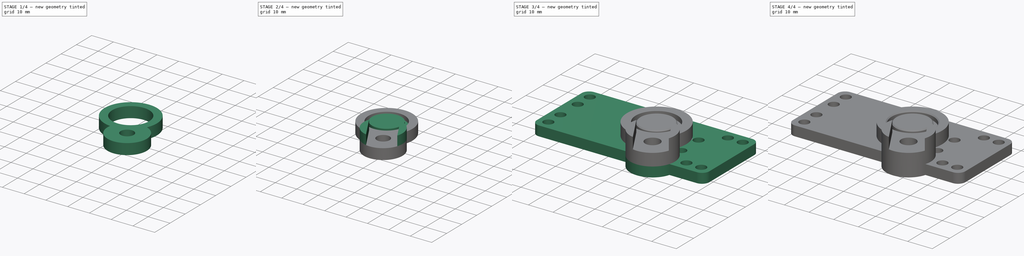
[diagram: build sequence overview — one tinted view per stage of 4, left to right]
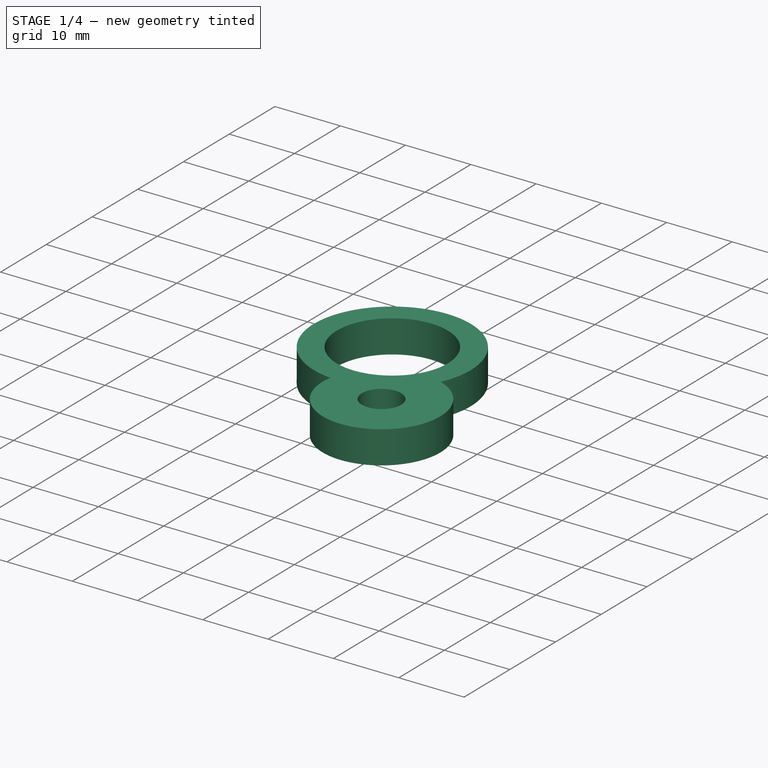
[diagram: stage 1 of 4 — iso view after this stage's code; geometry added in this stage tinted green]
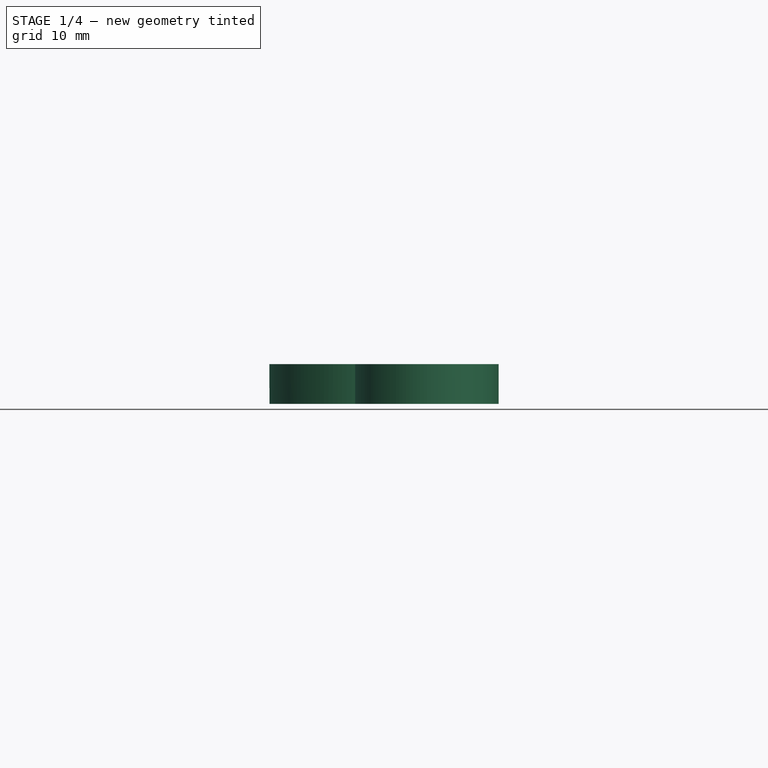
[diagram: stage 1 of 4 — front view after this stage's code; geometry added in this stage tinted green]
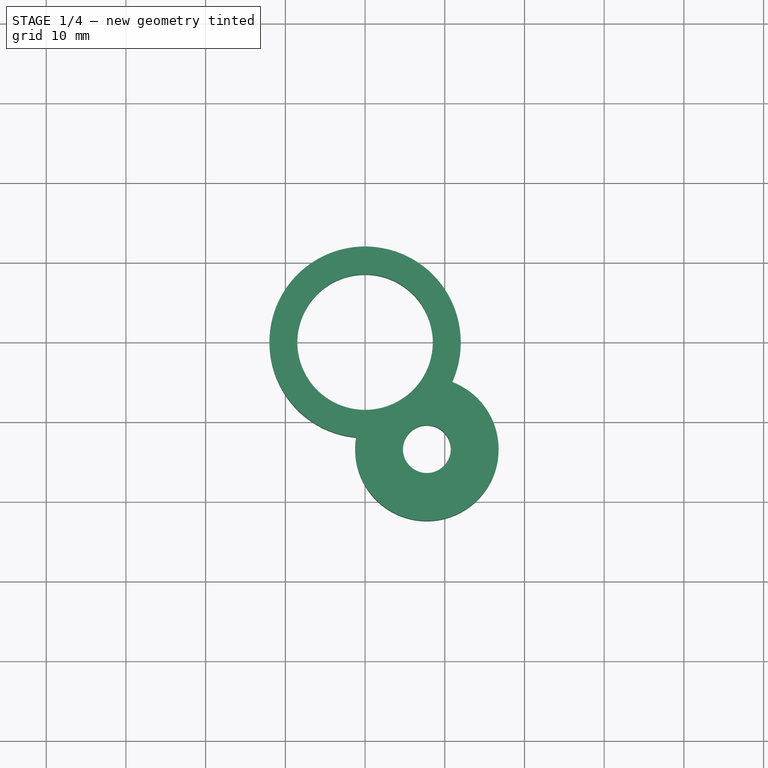
[diagram: stage 1 of 4 — top view after this stage's code; geometry added in this stage tinted green]
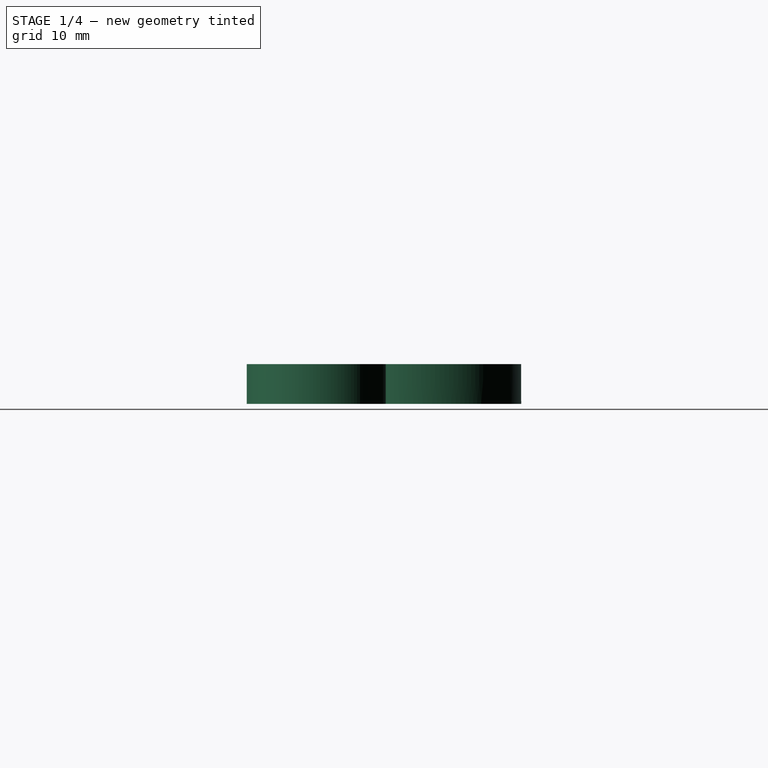
[diagram: stage 1 of 4 — right view after this stage's code; geometry added in this stage tinted green]
FCSTD DOCUMENT  (FreeCAD 0.19R24276 (Git))
Label: Ventil_support_V1
License: All rights reserved
LicenseURL: http://en.wikipedia.org/wiki/All_rights_reserved
objects: Sketcher::SketchObject×7, PartDesign::Pad×6, PartDesign::Chamfer×2, PartDesign::Fillet×1, PartDesign::Pocket×1, PartDesign::Body×1
note: 28 computed .brp shape members not serialized (recipe doc carries the construction recipe); baked Part::Feature solids carry a one-line shape summary decoded from their .brp

FEATURE [Sketcher::SketchObject] Sketch  label="Sketch_d17_d24"
  FullyConstrained = true
  MapMode = 5
  Support = -> [XY_Plane]
  sketch-geometry (2):
    g0: Circle CenterX=0 CenterY=0 CenterZ=0 NormalX=0 NormalY=0 NormalZ=1 AngleXU=0 Radius=8.5
    g1: Circle CenterX=0 CenterY=0 CenterZ=0 NormalX=0 NormalY=0 NormalZ=1 AngleXU=0 Radius=12
  constraints (4):
    c: Coincident(g0,g-1)
    c: Diameter(g0) = 17
    c: Coincident(g1,g-1)
    c: Diameter(g1) = 24
FEATURE [PartDesign::Pad] Pad  label="Pad_h2"
  Direction = (1,1,1)
  Length = 2
  Length2 = 100
  Profile = -> Sketch
  Type = 0
FEATURE [Sketcher::SketchObject] Sketch001  label="Sketch001_d18_d24"
  FullyConstrained = true
  MapMode = 5
  Placement = pos=(0,0,2) rot=(0,0,1;0rad)
  Support = -> [Pad]
  sketch-geometry (5):
    g0: LineSegment StartX=0 StartY=0 StartZ=0 EndX=7.75 EndY=-13.4234 EndZ=0
    g1: Circle CenterX=7.75 CenterY=-13.4234 CenterZ=0 NormalX=0 NormalY=0 NormalZ=1 AngleXU=0 Radius=3
    g2: ArcOfCircle CenterX=7.75 CenterY=-13.4234 CenterZ=0 NormalX=0 NormalY=0 NormalZ=1 AngleXU=0 Radius=9 StartAngle=2.97679 EndAngle=7.49519
    g3: ArcOfCircle CenterX=0 CenterY=0 CenterZ=0 NormalX=0 NormalY=0 NormalZ=1 AngleXU=0 Radius=12 StartAngle=5.85373 EndAngle=10.9014
    g4: Circle CenterX=0 CenterY=0 CenterZ=0 NormalX=0 NormalY=0 NormalZ=1 AngleXU=0 Radius=8.5
  constraints (13):
    c: Coincident(g0,g-1)
    c: Angle(g0,g-1) = 1.0472
    c: Coincident(g1,g0)
    c: Diameter(g1) = 6
    c: Distance(g0) = 15.5
    c: Coincident(g2,g0)
    c: Diameter(g2) = 18
    c: Coincident(g3,g-1)
    c: Coincident(g4,g-1)
    c: Diameter(g3) = 24
    c: Diameter(g4) = 17
    c: Coincident(g3,g2)
    c: Coincident(g3,g2)
FEATURE [PartDesign::Pad] Pad001  label="Pad001_h5"
  BaseFeature = -> Pad
  Direction = (1,1,1)
  Length = 5
  Length2 = 100
  Profile = -> Sketch001
  Reversed = true
  Type = 0
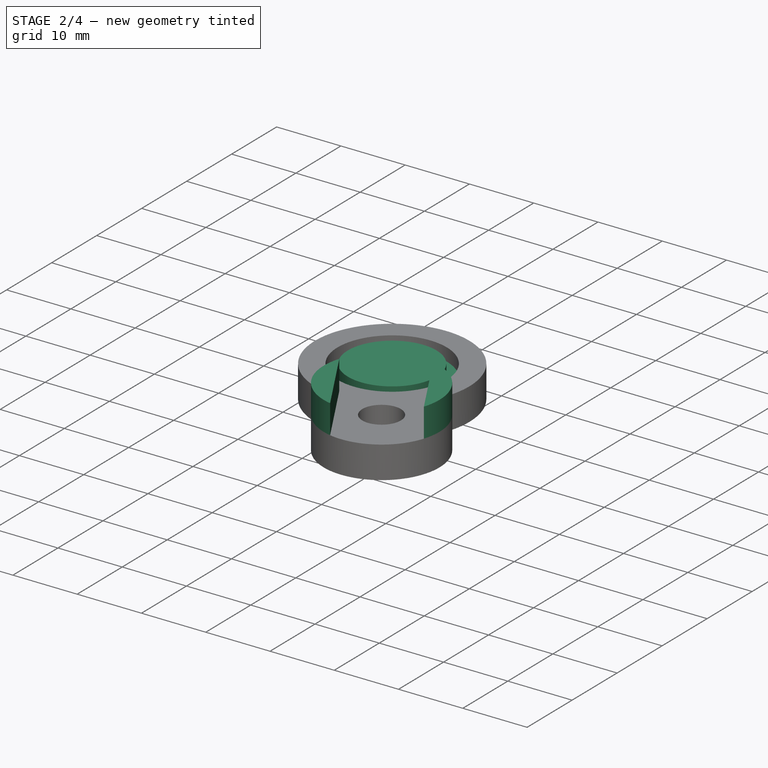
[diagram: stage 2 of 4 — iso view after this stage's code; geometry added in this stage tinted green]
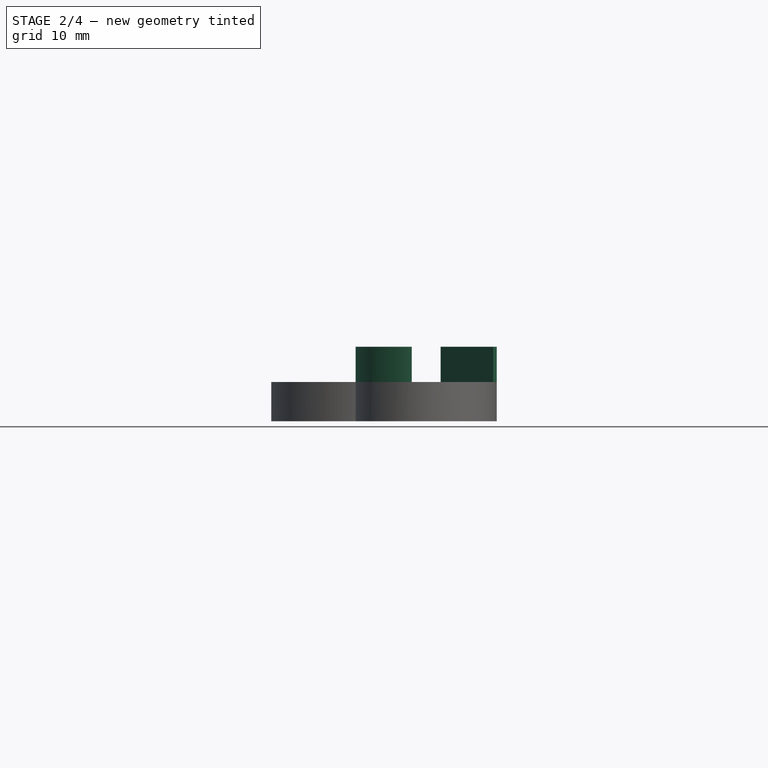
[diagram: stage 2 of 4 — front view after this stage's code; geometry added in this stage tinted green]
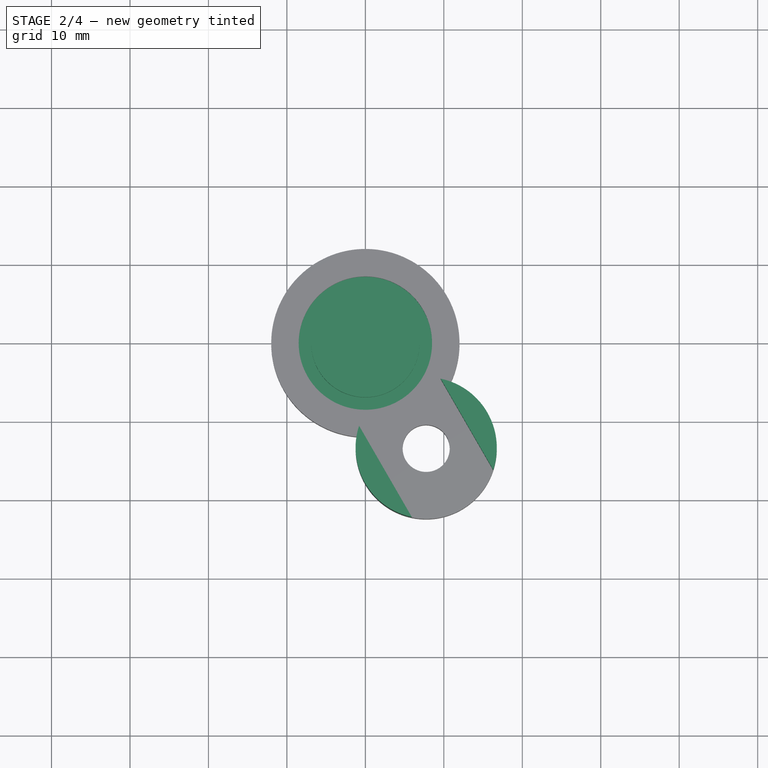
[diagram: stage 2 of 4 — top view after this stage's code; geometry added in this stage tinted green]
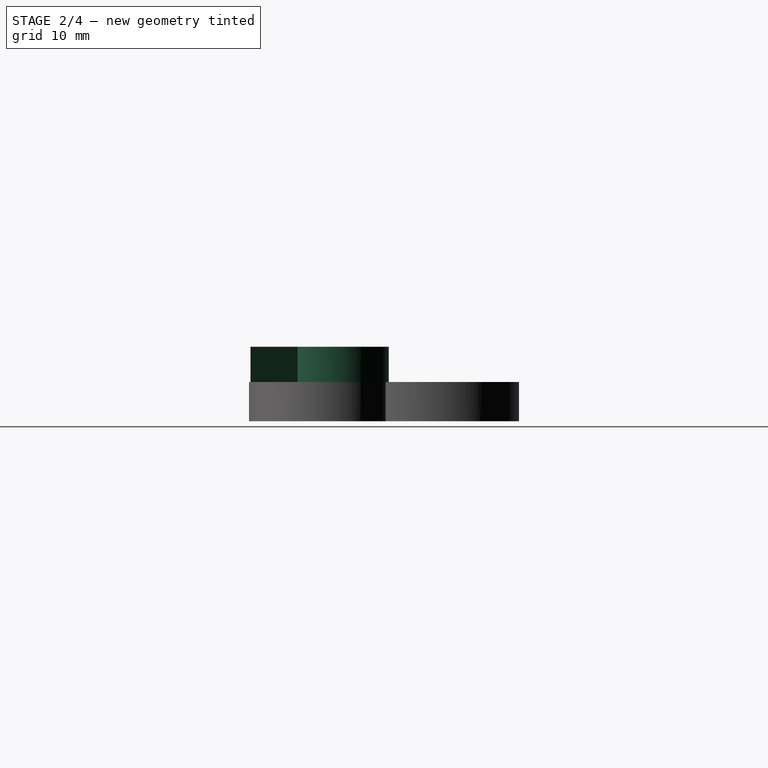
[diagram: stage 2 of 4 — right view after this stage's code; geometry added in this stage tinted green]
FEATURE [Sketcher::SketchObject] Sketch002  label="Sketch002_d17"
  FullyConstrained = true
  MapMode = 5
  Placement = pos=(0,0,-3) rot=(1,0,0;3.14159rad)
  Support = -> [Pad001]
  sketch-geometry (2):
    g0: Circle CenterX=0 CenterY=0 CenterZ=0 NormalX=0 NormalY=0 NormalZ=1 AngleXU=0 Radius=6.9
    g1: Circle CenterX=0 CenterY=0 CenterZ=0 NormalX=0 NormalY=0 NormalZ=1 AngleXU=0 Radius=8.5
  constraints (4):
    c: Coincident(g0,g-1)
    c: Coincident(g1,g-1)
    c: Diameter(g1) = 17
    c: Diameter(g0) = 13.8
FEATURE [PartDesign::Pad] Pad002  label="Pad002_h3"
  BaseFeature = -> Pad001
  Direction = (1,1,1)
  Length = 3
  Length2 = 100
  Profile = -> Sketch002
  Reversed = true
  Type = 0
FEATURE [Sketcher::SketchObject] Sketch003  label="Sketch003_d13,6"
  FullyConstrained = true
  MapMode = 5
  Support = -> [Pad002]
  sketch-geometry (1):
    g0: Circle CenterX=0 CenterY=0 CenterZ=0 NormalX=0 NormalY=0 NormalZ=1 AngleXU=0 Radius=6.9
  constraints (2):
    c: Coincident(g0,g-1)
    c: Diameter(g0) = 13.8
FEATURE [PartDesign::Pad] Pad003  label="Pad003_h2"
  BaseFeature = -> Pad002
  Direction = (1,1,1)
  Length = 2
  Length2 = 100
  Profile = -> Sketch003
  Type = 0
FEATURE [Sketcher::SketchObject] Sketch004  label="Sketch004_d18_2half"
  FullyConstrained = true
  MapMode = 5
  Placement = pos=(0,0,2) rot=(0,0,1;0rad)
  Support = -> [Pad003]
  sketch-geometry (7):
    g0: LineSegment StartX=-0.800254 StartY=-10.6139 StartZ=0 EndX=5.90795 EndY=-22.2329 EndZ=0
    g1: LineSegment StartX=16.3003 StartY=-16.2329 StartZ=0 EndX=9.59205 EndY=-4.61392 EndZ=0
    g2: LineSegment StartX=0 StartY=0 StartZ=0 EndX=11.1041 EndY=-19.2329 EndZ=0
    g3: ArcOfCircle CenterX=7.75 CenterY=-13.4234 CenterZ=0 NormalX=0 NormalY=0 NormalZ=1 AngleXU=0 Radius=9 StartAngle=2.82412 EndAngle=4.50626
    g4: LineSegment StartX=5.90795 StartY=-22.2329 StartZ=0 EndX=11.1041 EndY=-19.2329 EndZ=0
    g5: ArcOfCircle CenterX=7.75 CenterY=-13.4234 CenterZ=0 NormalX=0 NormalY=0 NormalZ=1 AngleXU=0 Radius=9 StartAngle=5.96572 EndAngle=7.64785
    g6: Circle CenterX=0 CenterY=0 CenterZ=0 NormalX=0 NormalY=0 NormalZ=1 AngleXU=0 Radius=9.75
  constraints (20):
    c: Coincident(g2,g-1)
    c: Angle(g2,g-1) = 1.0472
    c: Parallel(g0,g2)
    c: Parallel(g2,g1)
    c: PointOnObject(g3,g2)
    c: Diameter(g3) = 18
    c: Distance(g-1,g3) = 15.5
    c: PointOnObject(g0,g3)
    c: Symmetric(g0,g1,g2)
    c: Coincident(g4,g0)
    c: Coincident(g4,g2)
    c: Distance(g0,g1) = 12
    c: Coincident(g5,g1)
    c: Coincident(g3,g0)
    c: Equal(g3,g5)
    c: PointOnObject(g3,g4)
    c: Coincident(g5,g1)
    c: Coincident(g3,g5)
    c: Coincident(g6,g-1)
    c: Diameter(g6) = 19.5
FEATURE [PartDesign::Pad] Pad004  label="Pad004_h4,5"
  BaseFeature = -> Pad003
  Direction = (1,1,1)
  Length = 4.5
  Length2 = 100
  Profile = -> Sketch004
  Type = 0
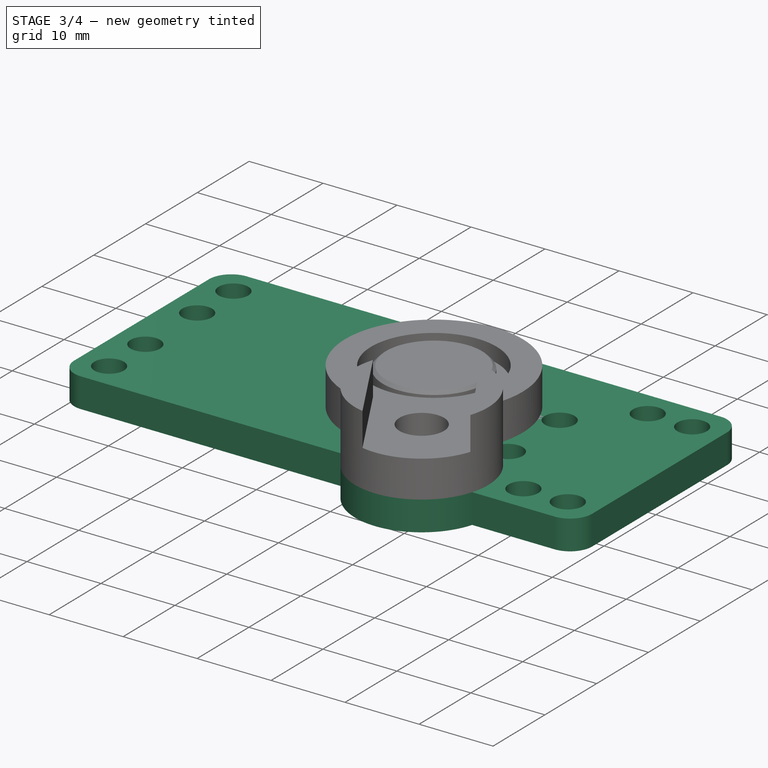
[diagram: stage 3 of 4 — iso view after this stage's code; geometry added in this stage tinted green]
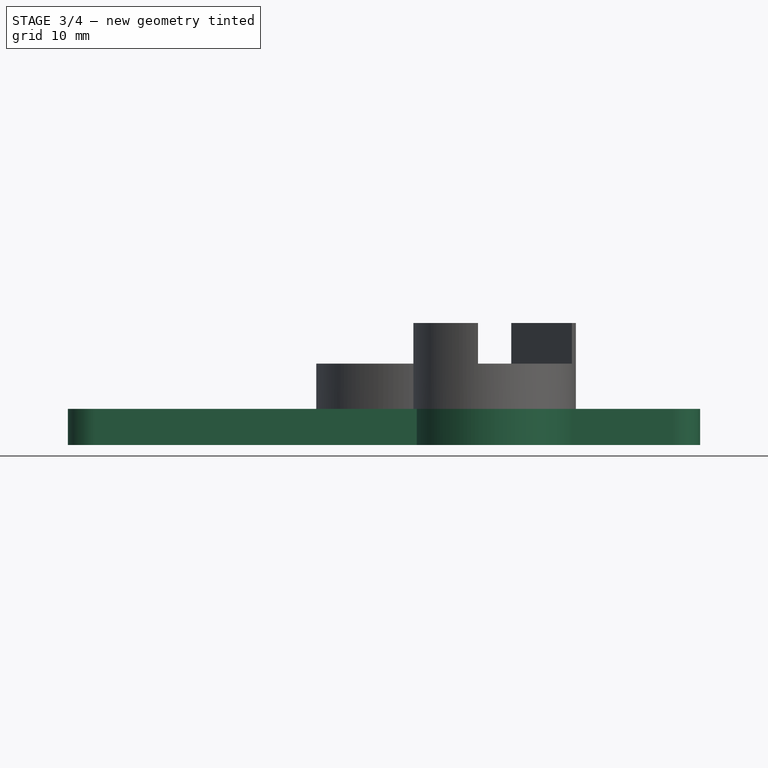
[diagram: stage 3 of 4 — front view after this stage's code; geometry added in this stage tinted green]
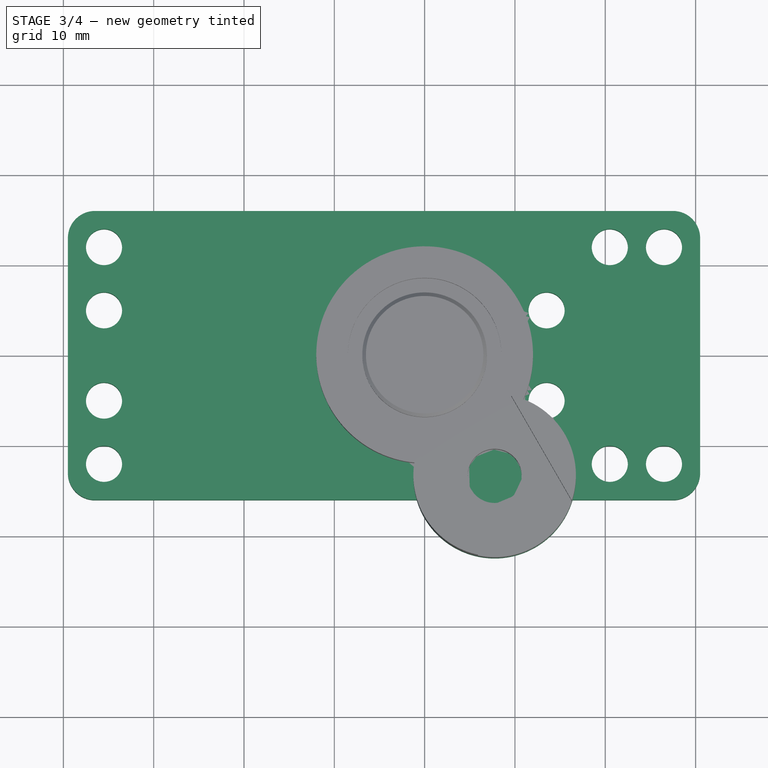
[diagram: stage 3 of 4 — top view after this stage's code; geometry added in this stage tinted green]
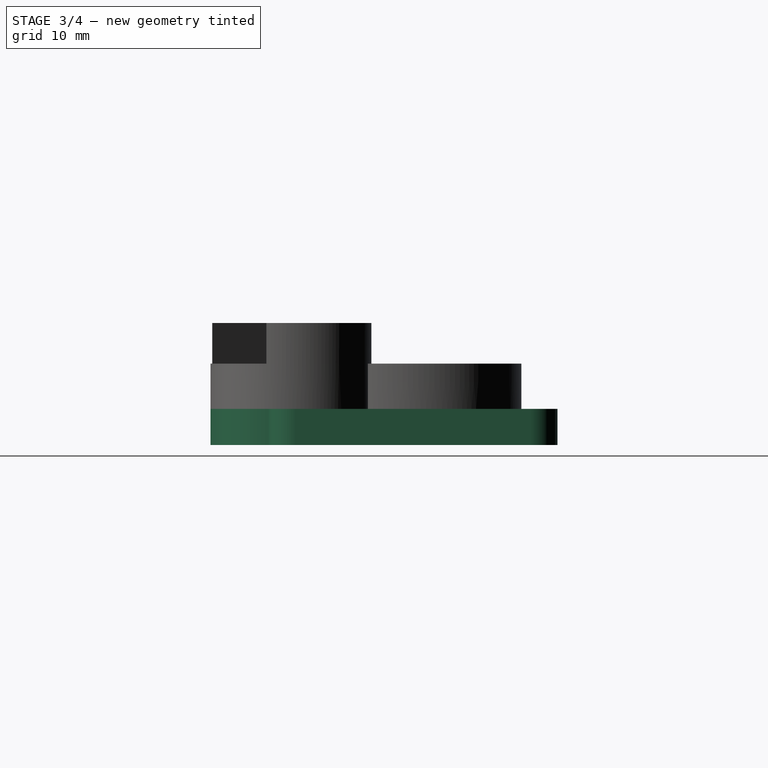
[diagram: stage 3 of 4 — right view after this stage's code; geometry added in this stage tinted green]
FEATURE [Sketcher::SketchObject] Sketch005  label="Sketch005_54x20"
  AttachmentOffset = pos=(0,0,-5) rot=(0,0,1;0rad)
  FullyConstrained = false
  MapMode = 5
  Placement = pos=(0,0,-3) rot=(0,0,1;0rad)
  Support = -> [Pad004]
  sketch-geometry (38):
    g0: LineSegment StartX=-31 StartY=16 StartZ=0 EndX=9 EndY=16 EndZ=0
    g1: LineSegment StartX=9 StartY=16 StartZ=0 EndX=9 EndY=-16 EndZ=0
    g2: LineSegment StartX=9 StartY=-16 StartZ=0 EndX=-31 EndY=-16 EndZ=0
    g3: LineSegment StartX=-31 StartY=-16 StartZ=0 EndX=-31 EndY=16 EndZ=0
    g4: LineSegment StartX=-31 StartY=16 StartZ=0 EndX=9 EndY=-16 EndZ=0
    g5: LineSegment StartX=-31 StartY=-16 StartZ=0 EndX=9 EndY=16 EndZ=0
    g6: GeomPoint X=-11 Y=0 Z=0
    g7: GeomPoint X=-11 Y=0 Z=0
    g8: LineSegment StartX=-39.5 StartY=16 StartZ=0 EndX=17.5 EndY=16 EndZ=0
    g9: LineSegment StartX=17.5 StartY=16 StartZ=0 EndX=17.5 EndY=-16 EndZ=0
    g10: LineSegment StartX=17.5 StartY=-16 StartZ=0 EndX=16.3733 EndY=-16 EndZ=0
    g11: LineSegment StartX=-39.5 StartY=-16 StartZ=0 EndX=-39.5 EndY=16 EndZ=0
    g12: LineSegment StartX=-39.5 StartY=16 StartZ=0 EndX=17.5 EndY=-16 EndZ=0
    g13: LineSegment StartX=-39.5 StartY=-16 StartZ=0 EndX=17.5 EndY=16 EndZ=0
    g14: GeomPoint X=-11 Y=0 Z=0
    g15: GeomPoint X=-11 Y=0 Z=0
    g16: Circle CenterX=-35.5 CenterY=5 CenterZ=0 NormalX=0 NormalY=0 NormalZ=1 AngleXU=0 Radius=2
    g17: Circle CenterX=-35.5 CenterY=-5 CenterZ=0 NormalX=0 NormalY=0 NormalZ=1 AngleXU=0 Radius=2
    g18: LineSegment StartX=-11 StartY=0 StartZ=0 EndX=-11 EndY=-5 EndZ=0
    g19: Circle CenterX=13.5 CenterY=5 CenterZ=0 NormalX=0 NormalY=0 NormalZ=1 AngleXU=0 Radius=2
    g20: Circle CenterX=13.5 CenterY=-5 CenterZ=0 NormalX=0 NormalY=0 NormalZ=1 AngleXU=0 Radius=2
    g21: LineSegment StartX=-11 StartY=0 StartZ=0 EndX=-35.5 EndY=0 EndZ=0
    g22: LineSegment StartX=-11 StartY=0 StartZ=0 EndX=49.8748 EndY=0 EndZ=0
    g23: Circle CenterX=-35.5 CenterY=12 CenterZ=0 NormalX=0 NormalY=0 NormalZ=1 AngleXU=0 Radius=2
    g24: Circle CenterX=-35.5 CenterY=-12 CenterZ=0 NormalX=0 NormalY=0 NormalZ=1 AngleXU=0 Radius=2
    g25: Circle CenterX=20.5 CenterY=12 CenterZ=0 NormalX=0 NormalY=0 NormalZ=1 AngleXU=0 Radius=2
    g26: Circle CenterX=20.5 CenterY=-12 CenterZ=0 NormalX=0 NormalY=0 NormalZ=1 AngleXU=0 Radius=2
    g27: LineSegment StartX=24.5 StartY=16 StartZ=0 EndX=24.5 EndY=-16 EndZ=0
    g28: LineSegment StartX=17.5 StartY=16 StartZ=0 EndX=24.5 EndY=16 EndZ=0
    g29: LineSegment StartX=17.5 StartY=-16 StartZ=0 EndX=24.5 EndY=-16 EndZ=0
    g30: ArcOfCircle CenterX=7.75 CenterY=-13.4234 CenterZ=0 NormalX=0 NormalY=0 NormalZ=1 AngleXU=0 Radius=9 StartAngle=3.43194 EndAngle=5.99283
    g31: LineSegment StartX=0 StartY=0 StartZ=0 EndX=7.75 EndY=-13.4234 EndZ=0
    g32: LineSegment StartX=-0.873288 StartY=-16 StartZ=0 EndX=-39.5 EndY=-16 EndZ=0
    g33: Circle CenterX=26.5 CenterY=-12 CenterZ=0 NormalX=0 NormalY=0 NormalZ=1 AngleXU=0 Radius=2
    g34: Circle CenterX=26.5 CenterY=12 CenterZ=0 NormalX=0 NormalY=0 NormalZ=1 AngleXU=0 Radius=2
    g35: LineSegment StartX=30.5 StartY=16 StartZ=0 EndX=30.5 EndY=-16 EndZ=0
    g36: LineSegment StartX=24.5 StartY=16 StartZ=0 EndX=30.5 EndY=16 EndZ=0
    g37: LineSegment StartX=24.5 StartY=-16 StartZ=0 EndX=30.5 EndY=-16 EndZ=0
  constraints (95):
    c: Coincident(g0,g1)
    c: Coincident(g1,g2)
    c: Coincident(g2,g3)
    c: Coincident(g3,g0)
    c: Horizontal(g0)
    c: Horizontal(g2)
    c: Vertical(g1)
    c: Vertical(g3)
    c: DistanceX(g2,g2) = 40
    c: Coincident(g4,g0)
    c: Coincident(g4,g1)
    c: Coincident(g5,g2)
    c: Coincident(g5,g0)
    c: PointOnObject(g6,g4)
    c: PointOnObject(g7,g5)
    c: Coincident(g7,g6)
    c: Coincident(g8,g9)
    c: Coincident(g9,g10)
    c: Coincident(g11,g8)
    c: Horizontal(g8)
    c: Horizontal(g10)
    c: Vertical(g9)
    c: Vertical(g11)
    c: Coincident(g12,g8)
    c: Coincident(g12,g9)
    c: Coincident(g13,g8)
    c: Equal(g9,g1)
    c: PointOnObject(g14,g13)
    c: PointOnObject(g15,g12)
    c: Coincident(g15,g14)
    c: Coincident(g14,g6)
    c: DistanceX(g32,g10) = 57
    c: Vertical(g17,g16)
    c: Coincident(g18,g6)
    c: Vertical(g18)
    c: Equal(g20,g19)
    c: Equal(g19,g17)
    c: Equal(g17,g16)
    c: Diameter(g20) = 4
    c: Vertical(g19,g20)
    c: Horizontal(g17,g20)
    c: Horizontal(g16,g19)
    c: Coincident(g21,g6)
    c: Horizontal(g21)
    c: Symmetric(g17,g16,g21)
    c: Coincident(g22,g6)
    c: Horizontal(g22)
    c: Symmetric(g17,g20,g18)
    c: DistanceY(g20,g19) = 10
    c: DistanceX(g17,g20) = 49
    c: Horizontal(g6,g-1)
    c: Coincident(g13,g11)
    c: Coincident(g32,g11)
    c: DistanceY(g9,g9) = 32
    c: DistanceX(g-1,g1) = 9
    c: Equal(g16,g24)
    c: Equal(g24,g23)
    c: Vertical(g23,g24)
    c: Vertical(g24,g16)
    c: DistanceY(g24,g23) = 24
    c: DistanceY(g21,g23) = 12
    c: Equal(g19,g25)
    c: Equal(g25,g26)
    c: Vertical(g25,g26)
    c: DistanceX(g24,g26) = 56
    c: Horizontal(g26,g24)
    c: Horizontal(g23,g25)
    c: Vertical(g27)
    c: Coincident(g28,g8)
    c: Horizontal(g28)
    c: Coincident(g29,g10)
    c: Horizontal(g29)
    c: Coincident(g27,g29)
    c: Coincident(g27,g28)
    c: DistanceX(g8,g27) = 64
    c: Coincident(g31,g-1)
    c: Coincident(g31,g30)
    c: Angle(g31,g22) = 1.0472
    c: Distance(g31) = 15.5
    c: Diameter(g30) = 18
    c: PointOnObject(g32,g30)
    c: Tangent(g10,g32)
    c: PointOnObject(g30,g2)
    c: Coincident(g30,g10)
    c: Equal(g34,g33)
    c: Vertical(g34,g33)
    c: DistanceX(g26,g33) = 6
    c: Vertical(g35)
    c: Coincident(g36,g27)
    c: Horizontal(g36)
    c: Coincident(g37,g27)
    c: Horizontal(g37)
    c: Coincident(g37,g35)
    c: Coincident(g36,g35)
    c: DistanceX(g33,g35) = 4
FEATURE [PartDesign::Pad] Pad005  label="Pad005_h4"
  BaseFeature = -> Pad004
  Direction = (1,1,1)
  Length = 4
  Length2 = 100
  Profile = -> Sketch005
  Reversed = true
  Type = 0
FEATURE [PartDesign::Fillet] Fillet
  Base = -> Pad005 [Edge78,Edge68,Edge70,Edge76]
  BaseFeature = -> Pad005
  Radius = 3
  SupportTransform = false
FEATURE [PartDesign::Chamfer] Chamfer
  Angle = 45
  Base = -> Fillet [Edge115]
  BaseFeature = -> Fillet
  ChamferType = 0
  FlipDirection = false
  Size = 0.4
  Size2 = 1
  SupportTransform = false
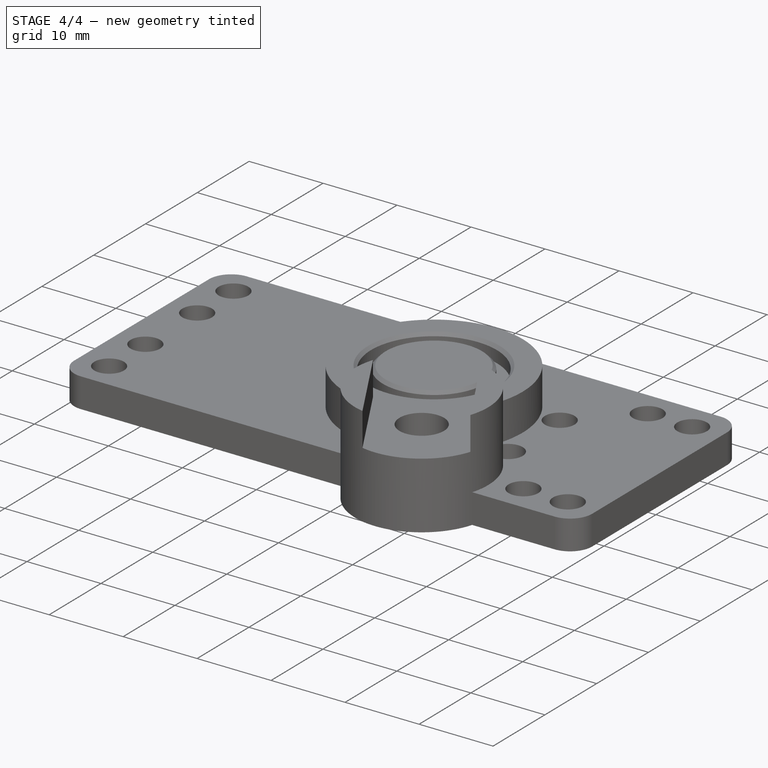
[diagram: stage 4 of 4 — iso view after this stage's code; geometry added in this stage tinted green]
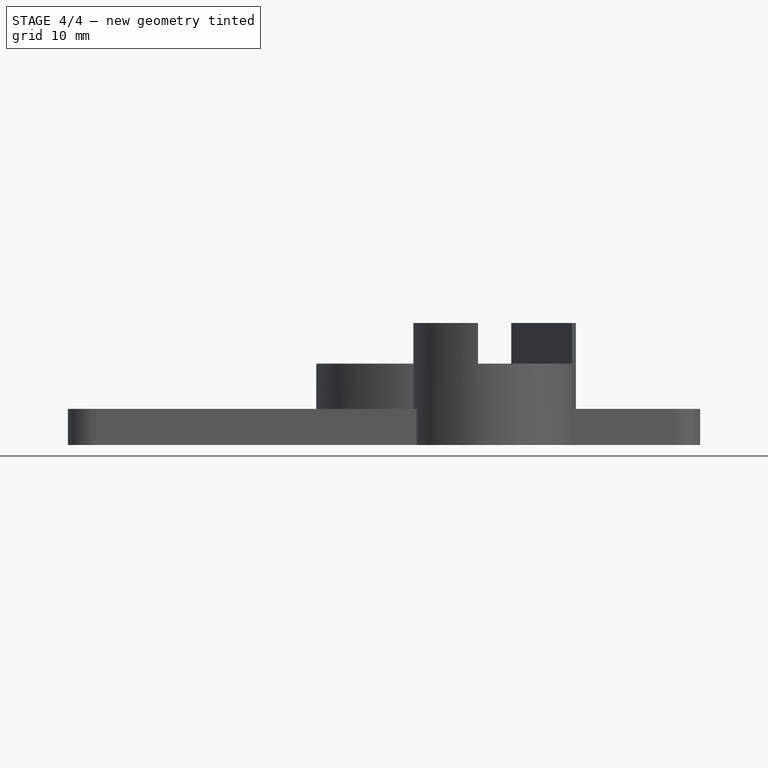
[diagram: stage 4 of 4 — front view after this stage's code; geometry added in this stage tinted green]
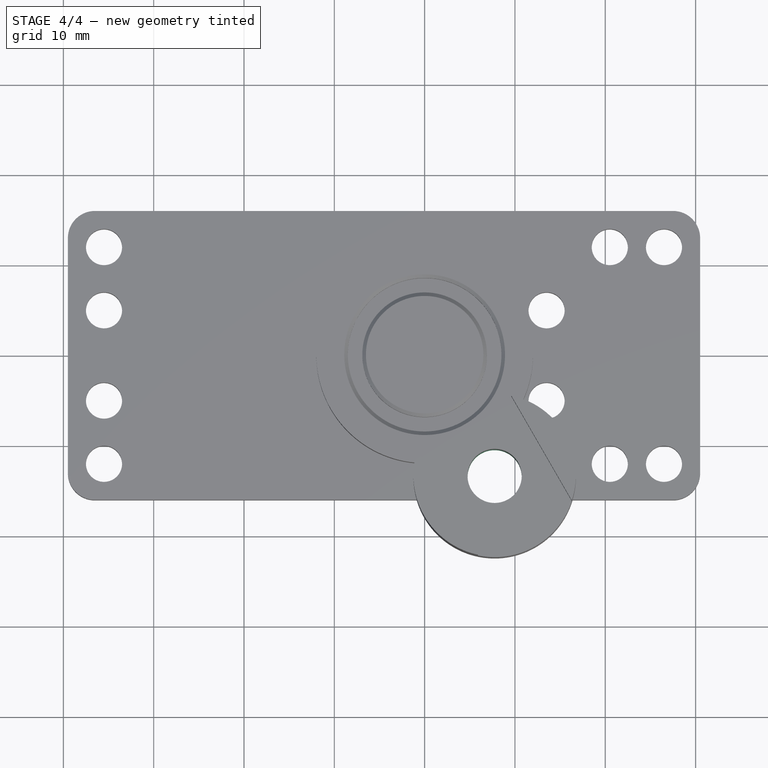
[diagram: stage 4 of 4 — top view after this stage's code; geometry added in this stage tinted green]
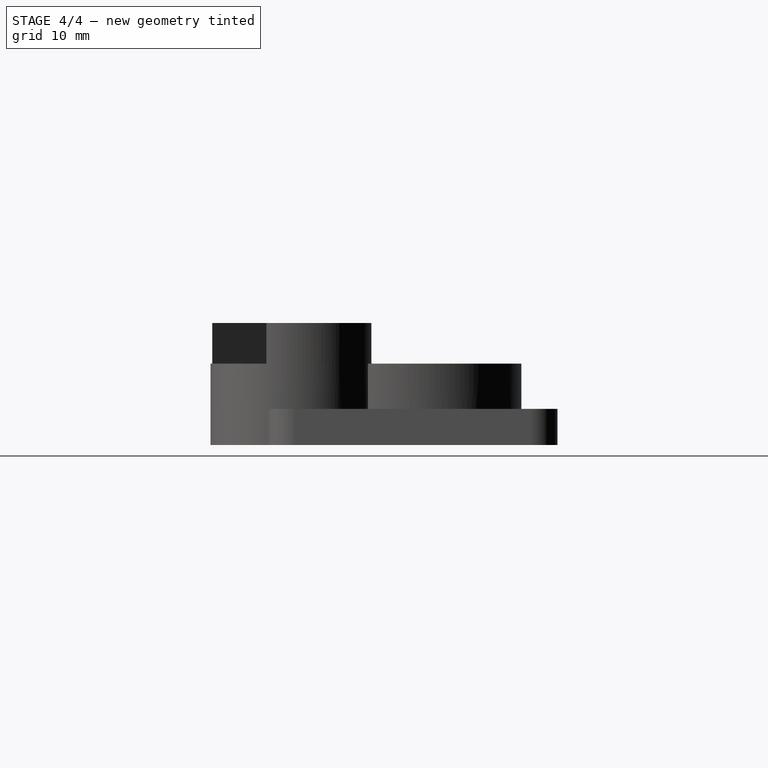
[diagram: stage 4 of 4 — right view after this stage's code; geometry added in this stage tinted green]
FEATURE [PartDesign::Chamfer] Chamfer001
  Angle = 45
  Base = -> Chamfer [Edge8]
  BaseFeature = -> Chamfer
  ChamferType = 0
  FlipDirection = false
  Size = 0.4
  Size2 = 1
  SupportTransform = false
FEATURE [Sketcher::SketchObject] Sketch006
  FullyConstrained = true
  MapMode = 5
  Placement = pos=(0,0,-3) rot=(0,0,1;0rad)
  Support = -> [Chamfer001]
  sketch-geometry (2):
    g0: Circle CenterX=7.75 CenterY=-13.4234 CenterZ=0 NormalX=0 NormalY=0 NormalZ=1 AngleXU=0 Radius=3
    g1: LineSegment StartX=0 StartY=0 StartZ=0 EndX=7.75 EndY=-13.4234 EndZ=0
  constraints (5):
    c: Coincident(g1,g-1)
    c: Coincident(g1,g0)
    c: Angle(g1,g-1) = 1.0472
    c: Distance(g1) = 15.5
    c: Diameter(g0) = 6
FEATURE [PartDesign::Pocket] Pocket
  BaseFeature = -> Chamfer001
  Length = 5
  Length2 = 100
  Profile = -> Sketch006
  Type = 1
FEATURE [PartDesign::Body] Body
  Group = -> [Sketch,Pad,Sketch001,Pad001,Sketch002,Pad002,Sketch003,Pad003,Sketch004,Pad004,Sketch005,Pad005,Fillet,Chamfer,Chamfer001,Sketch006,Pocket]
  Origin = -> Origin
  Tip = -> Pocket
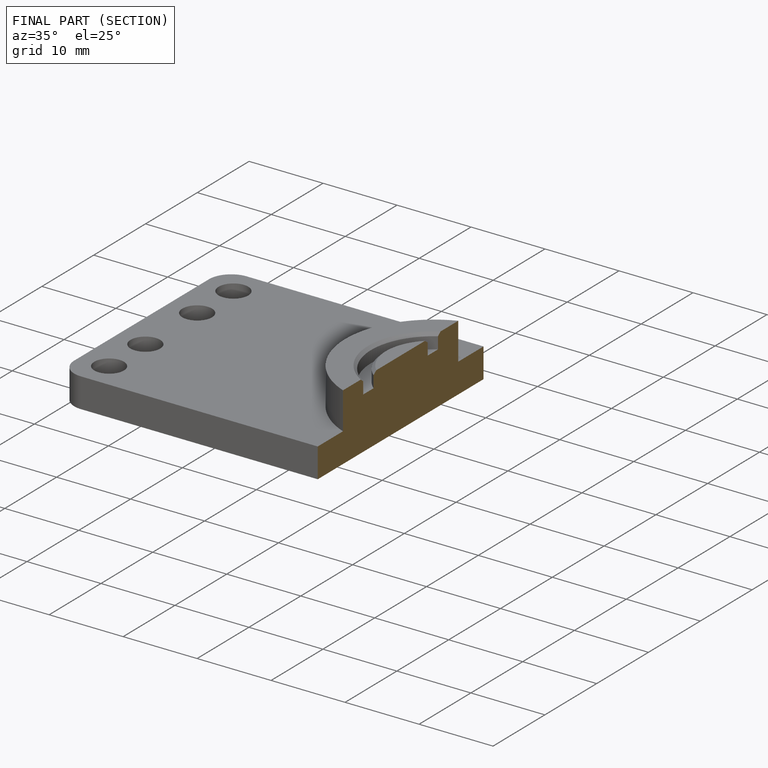
[diagram: finished part — half-section view (interior)]
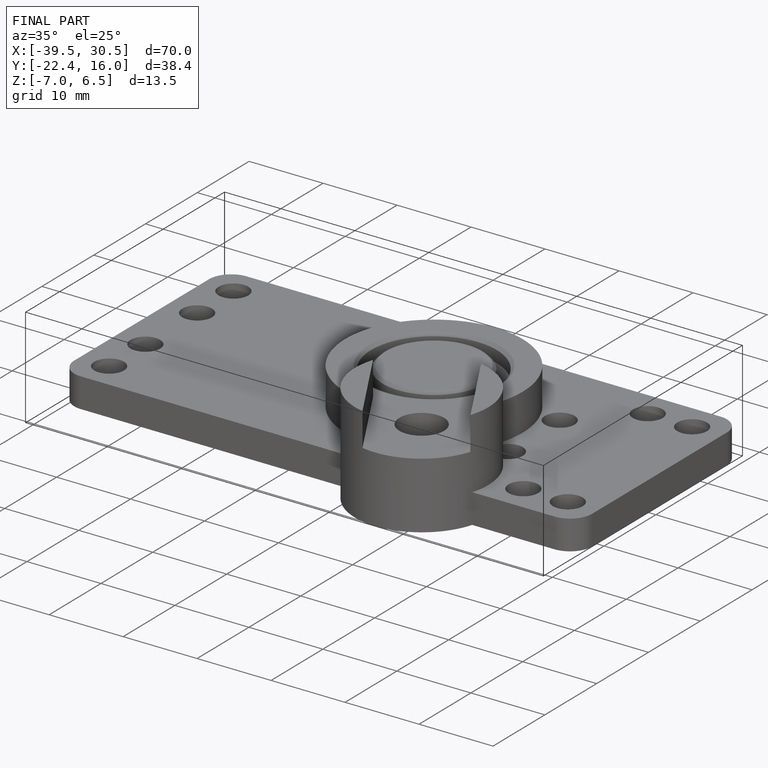
[diagram: finished part — iso view with bounding-box wireframe]
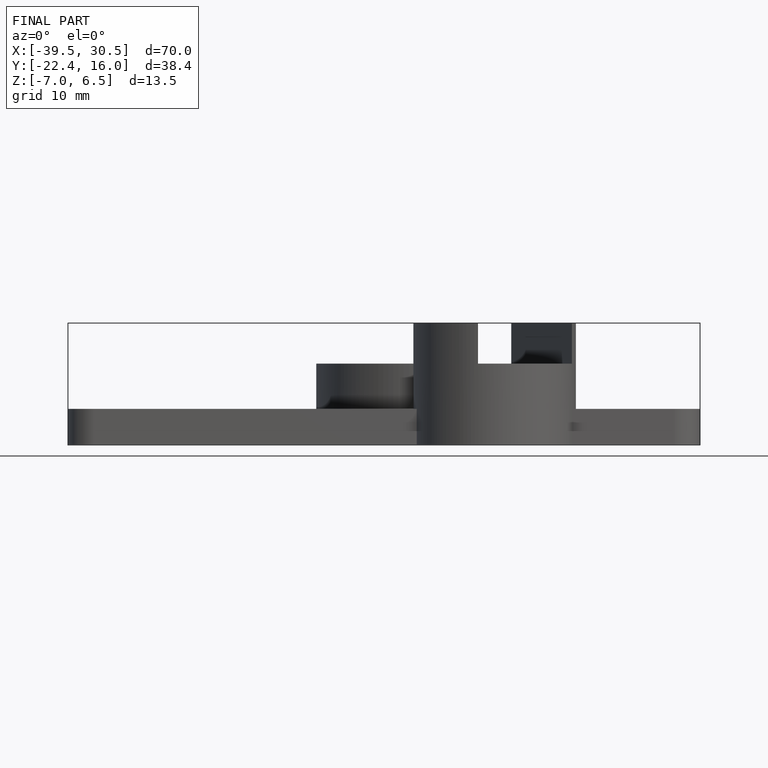
[diagram: finished part — front view with bounding-box wireframe]
